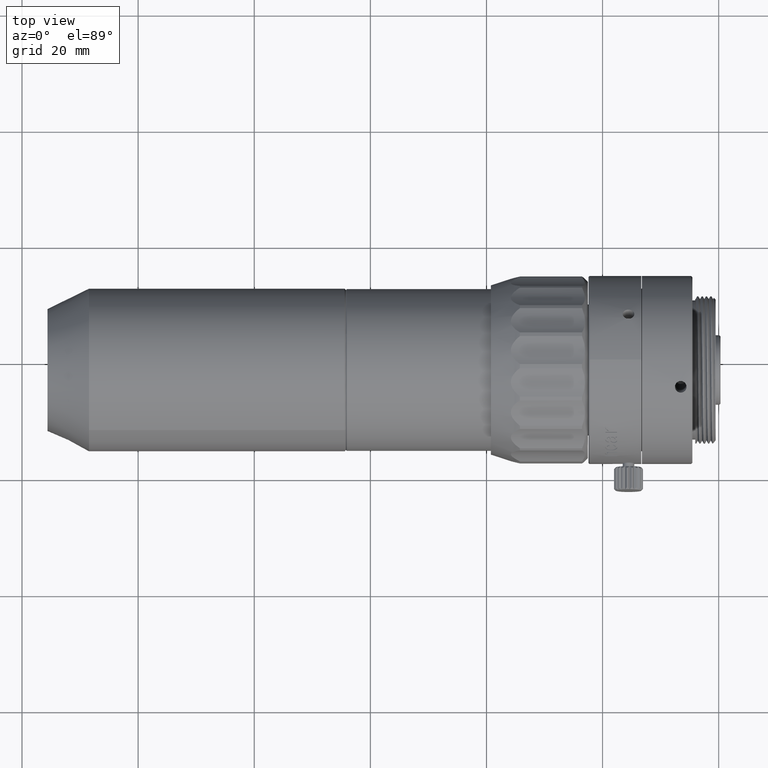
[diagram: clean part render]
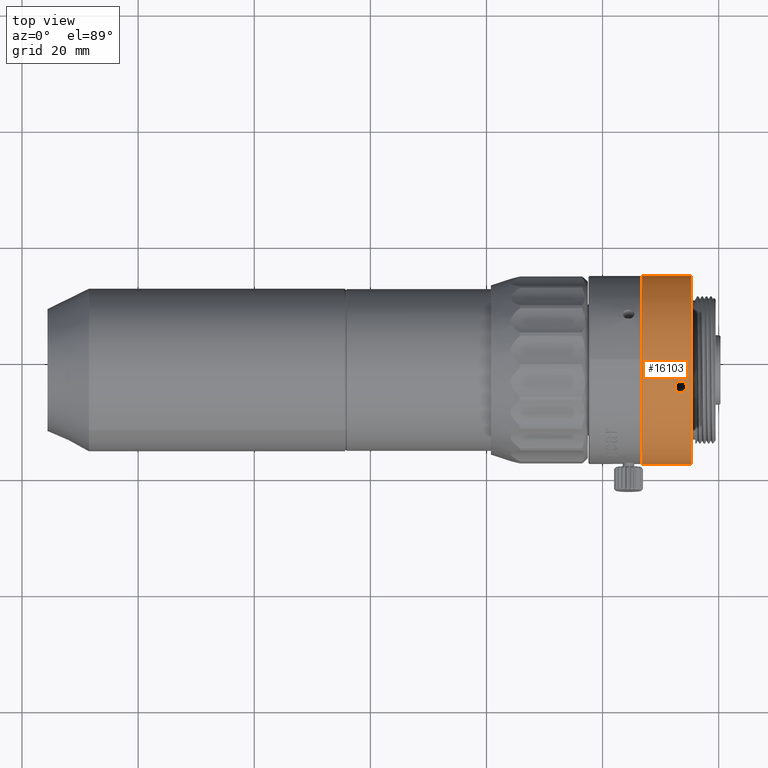
[diagram: same view with one face highlighted and labeled with its STEP entity id]
A machine part, top view. The second image highlights one B-rep face of the part: STEP entity #16103.
In plain terms, the highlighted cylindrical surface (bore or boss wall) has radius 16.2 mm, axis along (-1, -0, -0).
Its self-contained STEP definition (entity closure, byte-faithful):
#98 = CARTESIAN_POINT ( 'NONE',  ( 54.43787634309315848, 13.99853255910078609, 68.00836801141406340 ) ) ;
#165 = VERTEX_POINT ( 'NONE', #17247 ) ;
#284 = CARTESIAN_POINT ( 'NONE',  ( 52.46416960218842718, -13.51167060989704893, 62.82998909496222240 ) ) ;
#514 = CARTESIAN_POINT ( 'NONE',  ( 53.96825267835929196, -13.98549166654557396, 63.40386415734426606 ) ) ;
#648 = CARTESIAN_POINT ( 'NONE',  ( 53.20243676093349450, -12.76047094087237355, 62.02079420944368593 ) ) ;
#961 = CARTESIAN_POINT ( 'NONE',  ( 54.26513742276114272, -5.053957547313398635, 89.18724918262503820 ) ) ;
#1097 = CARTESIAN_POINT ( 'NONE',  ( 52.59041445842954232, -4.947032579115417938, 89.21276478864753301 ) ) ;
#1179 = EDGE_CURVE ( 'NONE', #6681, #6681, #6433, .T. ) ;
#1203 = CARTESIAN_POINT ( 'NONE',  ( 53.46425907758765561, -12.74202566376174595, 62.00236092571189772 ) ) ;
#1216 = CARTESIAN_POINT ( 'NONE',  ( 52.66491668607308441, -5.055577079738028168, 89.18685263794831997 ) ) ;
#1241 = EDGE_LOOP ( 'NONE', ( #20693 ) ) ;
#1339 = CARTESIAN_POINT ( 'NONE',  ( 53.33211016701908136, -3.468478805684927391, 89.48567879818813253 ) ) ;
#1598 = CARTESIAN_POINT ( 'NONE',  ( 53.59640798815623697, 14.37457136030631233, 69.21416870755052742 ) ) ;
#1715 = DIRECTION ( 'NONE',  ( 4.283267841918325991E-16, -0.3197144794882891272, -0.9475139321432335393 ) ) ;
#1859 = CARTESIAN_POINT ( 'NONE',  ( 54.07915676612948630, 13.81012867429184077, 67.50563548329047592 ) ) ;
#2144 = CARTESIAN_POINT ( 'NONE',  ( 46.60438807758661284, -1.265596703952538205, 73.43615199999769061 ) ) ;
#2148 = CARTESIAN_POINT ( 'NONE',  ( 52.84936138904581782, -12.88319457400102230, 62.14545044672727414 ) ) ;
#2392 = EDGE_CURVE ( 'NONE', #20267, #20267, #23374, .T. ) ;
#2394 = CARTESIAN_POINT ( 'NONE',  ( 53.59641102871224660, -14.06345333221008076, 63.50363642122665198 ) ) ;
#2879 = CARTESIAN_POINT ( 'NONE',  ( 54.46416912934165566, -13.51257096072379582, 62.83102874756168887 ) ) ;
#3012 = CARTESIAN_POINT ( 'NONE',  ( 53.96859443420032676, -12.83122840828265687, 62.09248870488629990 ) ) ;
#3210 = CARTESIAN_POINT ( 'NONE',  ( 53.72608262743494123, -3.494321909549231275, 89.48218924210790703 ) ) ;
#3344 = CARTESIAN_POINT ( 'NONE',  ( 54.46434855298684141, 14.12562169864092354, 68.37972897955387452 ) ) ;
#3465 = CARTESIAN_POINT ( 'NONE',  ( 52.49002965183994718, -4.198921348018753719, 89.36883149846650554 ) ) ;
#3482 = CARTESIAN_POINT ( 'NONE',  ( 53.96859354600888281, 14.34111987557700374, 69.09185329138254872 ) ) ;
#3588 = CARTESIAN_POINT ( 'NONE',  ( 53.59640966942682638, -12.74202566376174950, 62.00236092571190483 ) ) ;
#3591 = CARTESIAN_POINT ( 'NONE',  ( 46.76425907758764566, -1.265596703952538205, 73.43615199999769061 ) ) ;
#3593 = CARTESIAN_POINT ( 'NONE',  ( 53.20218245057618134, 13.74506429365334803, 67.34332095950284724 ) ) ;
#3846 = CARTESIAN_POINT ( 'NONE',  ( 52.96026547681599794, 14.34116987668702592, 69.09203366428403115 ) ) ;
#3949 = ORIENTED_EDGE ( 'NONE', *, *, #1179, .T. ) ;
#4266 = CARTESIAN_POINT ( 'NONE',  ( 52.84991691998474295, -13.93986936542259514, 63.34598089914286589 ) ) ;
#4760 = DIRECTION ( 'NONE',  ( 4.283267841918325991E-16, -0.3197144794882891272, -0.9475139321432335393 ) ) ;
#4820 = CARTESIAN_POINT ( 'NONE',  ( 54.07915745814764108, -3.667481980232459193, 89.45737133407025965 ) ) ;
#4911 = AXIS2_PLACEMENT_3D ( 'NONE', #3591, #16944, #1715 ) ;
#4944 = CARTESIAN_POINT ( 'NONE',  ( 53.33210848574849194, -5.429335755943112574, 89.09192656106279173 ) ) ;
#5069 = CARTESIAN_POINT ( 'NONE',  ( 52.84936138904580361, -5.234832140608826734, 89.14263766304691217 ) ) ;
#5205 = CARTESIAN_POINT ( 'NONE',  ( 52.66338073241415429, 13.87733502271242259, 67.67938562835753658 ) ) ;
#5316 = CARTESIAN_POINT ( 'NONE',  ( 53.59640966942682638, -5.429335755943116126, 89.09192656106283437 ) ) ;
#5328 = CARTESIAN_POINT ( 'NONE',  ( 53.33210848574851326, 13.73514234887078267, 67.31914064893202010 ) ) ;
#5382 = ORIENTED_EDGE ( 'NONE', *, *, #17337, .T. ) ;
#5463 = CARTESIAN_POINT ( 'NONE',  ( 54.26360146910219129, 13.87673614280359580, 67.67782951916797174 ) ) ;
#5700 = CARTESIAN_POINT ( 'NONE',  ( 53.96825182208242211, 13.78256671576665404, 67.43654327088948719 ) ) ;
#5834 = ORIENTED_EDGE ( 'NONE', *, *, #2392, .T. ) ;
#5997 = CARTESIAN_POINT ( 'NONE',  ( 53.33211016701908136, -14.06345357903830440, 63.50363673926008801 ) ) ;
#6119 = CARTESIAN_POINT ( 'NONE',  ( 52.66491668607306309, -13.01111339592875638, 62.27858239574756993 ) ) ;
#6371 = CARTESIAN_POINT ( 'NONE',  ( 52.49064181208209590, -13.25107111482152611, 62.53647841165890497 ) ) ;
#6433 = B_SPLINE_CURVE_WITH_KNOTS ( 'NONE', 3,
 ( #18162, #4944, #18282, #23783, #5069, #1216, #1097, #22406, #6822, #22027, #3465, #14678, #20280, #14558, #18408, #20161, #1339, #18028, #3210, #24028, #4820, #10808, #12557, #8955, #6951, #8695, #10557, #22162, #961, #16433, #16569, #12429, #5316, #14423 ),
 .UNSPECIFIED., .T., .F.,
 ( 4, 2, 2, 2, 2, 2, 2, 2, 2, 2, 2, 2, 2, 2, 2, 2, 4 ),
 ( 0.000000000000000000, 0.0003908174715973249482, 0.0007816349431946498965, 0.001172452414791974899, 0.001563269886389299793, 0.001954087357986624904, 0.002344904829583949798, 0.002735722301181274692, 0.003126539772778599586, 0.003517357244375924480, 0.003908174715973249808, 0.004298992187570574268, 0.004689809659167899596, 0.005080627130765224056, 0.005471444602362549384, 0.005862262073959873844, 0.006253079545557199172 ),
 .UNSPECIFIED. ) ;
#6628 = CARTESIAN_POINT ( 'NONE',  ( 46.76425907758765277, -6.444971271662478074, 58.08642629927832246 ) ) ;
#6681 = VERTEX_POINT ( 'NONE', #10410 ) ;
#6822 = CARTESIAN_POINT ( 'NONE',  ( 52.46434902591955307, -4.583561419837081097, 89.29326799951509486 ) ) ;
#6951 = CARTESIAN_POINT ( 'NONE',  ( 54.46416912934164856, -4.326415722441435463, 89.34490445207367770 ) ) ;
#7209 = CARTESIAN_POINT ( 'NONE',  ( 52.59010830055663632, 13.91633519015786291, 67.78251481618048047 ) ) ;
#7885 = DIRECTION ( 'NONE',  ( 4.283267841918326977E-16, -0.3197144794882891272, -0.9475139321432337614 ) ) ;
#8002 = CARTESIAN_POINT ( 'NONE',  ( 53.33210848574850615, -12.74202566376174417, 62.00236092571187640 ) ) ;
#8123 = CARTESIAN_POINT ( 'NONE',  ( 54.07915745814765529, -13.93943700872175917, 63.34544866672711549 ) ) ;
#8363 = FACE_OUTER_BOUND ( 'NONE', #11402, .T. ) ;
#8695 = CARTESIAN_POINT ( 'NONE',  ( 54.46434855290095101, -4.582214994648905027, 89.29354966667663973 ) ) ;
#8955 = CARTESIAN_POINT ( 'NONE',  ( 54.43787639365734066, -4.197062760180871877, 89.36916765692248532 ) ) ;
#9092 = CARTESIAN_POINT ( 'NONE',  ( 52.59041422204472838, 14.23806856508928220, 68.73606217233096061 ) ) ;
#9209 = CARTESIAN_POINT ( 'NONE',  ( 52.46434902583362003, 14.12605090034985267, 68.38103561455717738 ) ) ;
#9222 = B_SPLINE_CURVE_WITH_KNOTS ( 'NONE', 3,
 ( #18920, #22420, #22550, #5700, #1859, #5463, #24662, #98, #20668, #3344, #15181, #22781, #24287, #18669, #3482, #20916, #1598, #11069, #9582, #3846, #20420, #11440, #9092, #17187, #9209, #14691, #22292, #7209, #5205, #12816, #16695, #3593, #5328, #12947 ),
 .UNSPECIFIED., .T., .F.,
 ( 4, 2, 2, 2, 2, 2, 2, 2, 2, 2, 2, 2, 2, 2, 2, 2, 4 ),
 ( 0.000000000000000000, 0.0003908174715973241351, 0.0007816349431946482702, 0.001172452414791972514, 0.001563269886389296540, 0.001954087357986620567, 0.002344904829583945027, 0.002735722301181269054, 0.003126539772778593081, 0.003517357244375917107, 0.003908174715973241134, 0.004298992187570565594, 0.004689809659167890055, 0.005080627130765213648, 0.005471444602362538108, 0.005862262073959861701, 0.006253079545557186161 ),
 .UNSPECIFIED. ) ;
#9484 = EDGE_LOOP ( 'NONE', ( #3949 ) ) ;
#9582 = CARTESIAN_POINT ( 'NONE',  ( 53.20243552774032025, 14.36783016255126810, 69.18897745367533503 ) ) ;
#9751 = DIRECTION ( 'NONE',  ( -1.000000000000000000, -1.034783754618809334E-15, -9.648539361057629917E-17 ) ) ;
#9755 = CARTESIAN_POINT ( 'NONE',  ( 52.46434902591955307, -13.33927963234893710, 62.63415226742251463 ) ) ;
#10332 = AXIS2_PLACEMENT_3D ( 'NONE', #2144, #9751, #7885 ) ;
#10352 = CARTESIAN_POINT ( 'NONE',  ( 54.43848855161597555, -13.25234640741931003, 62.53787227381678093 ) ) ;
#10410 = CARTESIAN_POINT ( 'NONE',  ( 53.46425907758764851, -5.429335755943116126, 89.09192656106280594 ) ) ;
#10557 = CARTESIAN_POINT ( 'NONE',  ( 54.43848855161598266, -4.710408952640646518, 89.26612161509595467 ) ) ;
#10808 = CARTESIAN_POINT ( 'NONE',  ( 54.26360183802146508, -3.849910076898154898, 89.42895807714637613 ) ) ;
#11069 = CARTESIAN_POINT ( 'NONE',  ( 53.33210712646305751, 14.37457125538780467, 69.21416831888411991 ) ) ;
#11402 = EDGE_LOOP ( 'NONE', ( #24570 ) ) ;
#11440 = CARTESIAN_POINT ( 'NONE',  ( 52.66491631715381061, 14.26990021974571121, 68.84302047949523740 ) ) ;
#11601 = FACE_BOUND ( 'NONE', #9484, .T. ) ;
#12429 = CARTESIAN_POINT ( 'NONE',  ( 53.72633570459906593, -5.404091738310730086, 89.09869944681025800 ) ) ;
#12557 = CARTESIAN_POINT ( 'NONE',  ( 54.33810393313055442, -3.960043377690756206, 89.41095836142226005 ) ) ;
#12720 = EDGE_LOOP ( 'NONE', ( #5834 ) ) ;
#12816 = CARTESIAN_POINT ( 'NONE',  ( 52.84991621143543483, 13.80988433659531012, 67.50499598011715818 ) ) ;
#12947 = CARTESIAN_POINT ( 'NONE',  ( 53.46425907758764140, 13.73514234887078089, 67.31914064893200589 ) ) ;
#13600 = CARTESIAN_POINT ( 'NONE',  ( 52.59041445842954943, -13.08782622701223097, 62.35962861537829127 ) ) ;
#13733 = CARTESIAN_POINT ( 'NONE',  ( 52.66338109683258040, -13.82256880932875376, 63.20037201571625474 ) ) ;
#13981 = CARTESIAN_POINT ( 'NONE',  ( 52.59010854010682579, -13.75275636362975717, 63.11503223990654021 ) ) ;
#14225 = CARTESIAN_POINT ( 'NONE',  ( 53.72633570459908015, -12.76051316369219002, 62.02083644340135749 ) ) ;
#14244 = CARTESIAN_POINT ( 'NONE',  ( 55.26425907758559930, -1.265596703952529323, 73.43615199999769061 ) ) ;
#14423 = CARTESIAN_POINT ( 'NONE',  ( 53.46425907758765561, -5.429335755943114350, 89.09192656106282016 ) ) ;
#14558 = CARTESIAN_POINT ( 'NONE',  ( 52.84991691998474295, -3.666804875089296534, 89.45747964974879096 ) ) ;
#14678 = CARTESIAN_POINT ( 'NONE',  ( 52.59010854010684000, -3.960368781854317177, 89.41090936643595910 ) ) ;
#14691 = CARTESIAN_POINT ( 'NONE',  ( 52.46416960227429627, 14.04264680143574395, 68.13382247184554785 ) ) ;
#15181 = CARTESIAN_POINT ( 'NONE',  ( 54.43848850333532141, 14.16596532384934903, 68.50446234527308320 ) ) ;
#15482 = CARTESIAN_POINT ( 'NONE',  ( 52.49002965183997560, -13.59703957794885376, 62.92947859145492373 ) ) ;
#15731 = CARTESIAN_POINT ( 'NONE',  ( 54.26360183802147930, -13.82361635808861600, 63.20166792911251008 ) ) ;
#15974 = FACE_BOUND ( 'NONE', #19264, .T. ) ;
#15978 = CARTESIAN_POINT ( 'NONE',  ( 54.43787639365735487, -13.59825999363039450, 62.93092009650968777 ) ) ;
#16091 = CIRCLE ( 'NONE', #4911, 16.19999999999892637 ) ;
#16103 = ADVANCED_FACE ( 'NONE', ( #8363, #15974, #21079, #17366, #11601 ), #19206, .T. ) ;
#16433 = CARTESIAN_POINT ( 'NONE',  ( 54.07860194373984797, -5.235497482505670597, 89.14247646323623542 ) ) ;
#16569 = CARTESIAN_POINT ( 'NONE',  ( 53.96859443420031255, -5.306681437330947659, 89.12411451431800913 ) ) ;
#16695 = CARTESIAN_POINT ( 'NONE',  ( 52.95992372097495604, 13.78263660667744617, 67.43671803487151806 ) ) ;
#16944 = DIRECTION ( 'NONE',  ( 1.000000000000000000, 1.034783754618809334E-15, 9.648539361057629917E-17 ) ) ;
#16978 = AXIS2_PLACEMENT_3D ( 'NONE', #14244, #21843, #4760 ) ;
#17187 = CARTESIAN_POINT ( 'NONE',  ( 52.49064176151792083, 14.16653464538867802, 68.50626324067360429 ) ) ;
#17247 = CARTESIAN_POINT ( 'NONE',  ( 53.46425907758763429, 13.73514234887078089, 67.31914064893199168 ) ) ;
#17337 = EDGE_CURVE ( 'NONE', #165, #165, #9222, .T. ) ;
#17366 = FACE_BOUND ( 'NONE', #12720, .T. ) ;
#17849 = VERTEX_POINT ( 'NONE', #6628 ) ;
#17957 = CARTESIAN_POINT ( 'NONE',  ( 54.46434855290097943, -13.34019677586033126, 62.63517747225895249 ) ) ;
#18028 = CARTESIAN_POINT ( 'NONE',  ( 53.59641102871221818, -3.468479204524096637, 89.48567874344530537 ) ) ;
#18162 = CARTESIAN_POINT ( 'NONE',  ( 53.46425907758765561, -5.429335755943114350, 89.09192656106282016 ) ) ;
#18204 = CARTESIAN_POINT ( 'NONE',  ( 54.26513742276113561, -13.01226657990487645, 62.27978667963116521 ) ) ;
#18282 = CARTESIAN_POINT ( 'NONE',  ( 53.20243676093346608, -5.404149425400917472, 89.09868399775456282 ) ) ;
#18408 = CARTESIAN_POINT ( 'NONE',  ( 52.95992460916637867, -3.594050612676908951, 89.46802138751404243 ) ) ;
#18669 = CARTESIAN_POINT ( 'NONE',  ( 54.07860123519053275, 14.32142982565265221, 69.02102523996039452 ) ) ;
#18920 = CARTESIAN_POINT ( 'NONE',  ( 53.46425907758764140, 13.73514234887078089, 67.31914064893200589 ) ) ;
#18933 = CIRCLE ( 'NONE', #16978, 16.19999999999892637 ) ;
#19206 = CYLINDRICAL_SURFACE ( 'NONE', #10332, 16.19999999999892282 ) ;
#19210 = CARTESIAN_POINT ( 'NONE',  ( 52.96026633309283227, -12.83109646843519869, 62.09235446977364603 ) ) ;
#19264 = EDGE_LOOP ( 'NONE', ( #5382 ) ) ;
#19715 = CARTESIAN_POINT ( 'NONE',  ( 55.26425907758560641, -6.444971271662469192, 58.08642629927832246 ) ) ;
#20161 = CARTESIAN_POINT ( 'NONE',  ( 53.20218365262224580, -3.494380405217596852, 89.48218131806928000 ) ) ;
#20267 = VERTEX_POINT ( 'NONE', #1203 ) ;
#20280 = CARTESIAN_POINT ( 'NONE',  ( 52.66338109683258040, -3.851556145200365044, 89.42869883000683728 ) ) ;
#20420 = CARTESIAN_POINT ( 'NONE',  ( 52.84936069702763461, 14.32123645152644364, 69.02036735690967362 ) ) ;
#20664 = CARTESIAN_POINT ( 'NONE',  ( 54.33810393313054732, -13.75296149661429546, 63.11528955068560265 ) ) ;
#20668 = CARTESIAN_POINT ( 'NONE',  ( 54.46416912925572262, 14.04219653131903023, 68.13252268186282379 ) ) ;
#20693 = ORIENTED_EDGE ( 'NONE', *, *, #22338, .T. ) ;
#20916 = CARTESIAN_POINT ( 'NONE',  ( 53.72633450255300858, 14.36781487865230744, 69.18892043669505654 ) ) ;
#21079 = FACE_OUTER_BOUND ( 'NONE', #1241, .T. ) ;
#21207 = CARTESIAN_POINT ( 'NONE',  ( 53.72608262743496255, -14.04750998289279806, 63.48300073284107725 ) ) ;
#21429 = EDGE_CURVE ( 'NONE', #22610, #22610, #18933, .T. ) ;
#21577 = CARTESIAN_POINT ( 'NONE',  ( 53.20218365262226001, -14.04747387263982183, 63.48295403612558374 ) ) ;
#21843 = DIRECTION ( 'NONE',  ( -1.000000000000000000, -1.034783754618809334E-15, -9.648539361057629917E-17 ) ) ;
#21946 = CARTESIAN_POINT ( 'NONE',  ( 53.46425907758766272, -12.74202566376174772, 62.00236092571189062 ) ) ;
#22027 = CARTESIAN_POINT ( 'NONE',  ( 52.46416960218841297, -4.327766263417059278, 89.34464455168513553 ) ) ;
#22162 = CARTESIAN_POINT ( 'NONE',  ( 54.33840985461866069, -4.946712615653005685, 89.21284541428043724 ) ) ;
#22292 = CARTESIAN_POINT ( 'NONE',  ( 52.49002960355929304, 13.99917089581791707, 68.01014614221935517 ) ) ;
#22338 = EDGE_CURVE ( 'NONE', #17849, #17849, #16091, .T. ) ;
#22406 = CARTESIAN_POINT ( 'NONE',  ( 52.49064181208207458, -4.712253718977612138, 89.26571411038793258 ) ) ;
#22420 = CARTESIAN_POINT ( 'NONE',  ( 53.59640966942676954, 13.73514234887077912, 67.31914064893199168 ) ) ;
#22546 = CARTESIAN_POINT ( 'NONE',  ( 54.33840985461864648, -13.08805603258973704, 62.35986539904853743 ) ) ;
#22550 = CARTESIAN_POINT ( 'NONE',  ( 53.72608139424178830, 13.74504164820711871, 67.34326569959461040 ) ) ;
#22610 = VERTEX_POINT ( 'NONE', #19715 ) ;
#22781 = CARTESIAN_POINT ( 'NONE',  ( 54.33840961506844991, 14.23797866785168509, 68.73574561765157398 ) ) ;
#23082 = CARTESIAN_POINT ( 'NONE',  ( 52.95992460916641420, -13.98537590933351105, 63.40371706974300281 ) ) ;
#23332 = CARTESIAN_POINT ( 'NONE',  ( 53.46425907758766272, -12.74202566376174772, 62.00236092571189062 ) ) ;
#23374 = B_SPLINE_CURVE_WITH_KNOTS ( 'NONE', 3,
 ( #23332, #8002, #648, #19210, #2148, #6119, #13600, #6371, #9755, #284, #15482, #13981, #13733, #4266, #23082, #21577, #5997, #2394, #21207, #514, #8123, #15731, #20664, #15978, #2879, #17957, #10352, #22546, #18204, #23570, #3012, #14225, #3588, #21946 ),
 .UNSPECIFIED., .T., .F.,
 ( 4, 2, 2, 2, 2, 2, 2, 2, 2, 2, 2, 2, 2, 2, 2, 2, 4 ),
 ( 0.000000000000000000, 0.0003908174715973234846, 0.0007816349431946469691, 0.001172452414791970345, 0.001563269886389293938, 0.001954087357986617531, 0.002344904829583940691, 0.002735722301181264283, 0.003126539772778587876, 0.003517357244375911469, 0.003908174715973235062, 0.004298992187570558655, 0.004689809659167881381, 0.005080627130765204974, 0.005471444602362528567, 0.005862262073959852160, 0.006253079545557175753 ),
 .UNSPECIFIED. ) ;
#23570 = CARTESIAN_POINT ( 'NONE',  ( 54.07860194373983376, -12.88272229992149143, 62.14495484364769595 ) ) ;
#23783 = CARTESIAN_POINT ( 'NONE',  ( 52.96026633309280385, -5.306863658272305884, 89.12406736861464651 ) ) ;
#24028 = CARTESIAN_POINT ( 'NONE',  ( 53.96825267835927065, -3.593865352471564023, 89.46804809239969813 ) ) ;
#24287 = CARTESIAN_POINT ( 'NONE',  ( 54.26513705834270240, 14.26943415936090531, 68.84142062398535700 ) ) ;
#24570 = ORIENTED_EDGE ( 'NONE', *, *, #21429, .T. ) ;
#24662 = CARTESIAN_POINT ( 'NONE',  ( 54.33810369674574758, 13.91621460855168912, 67.78220767258834201 ) ) ;